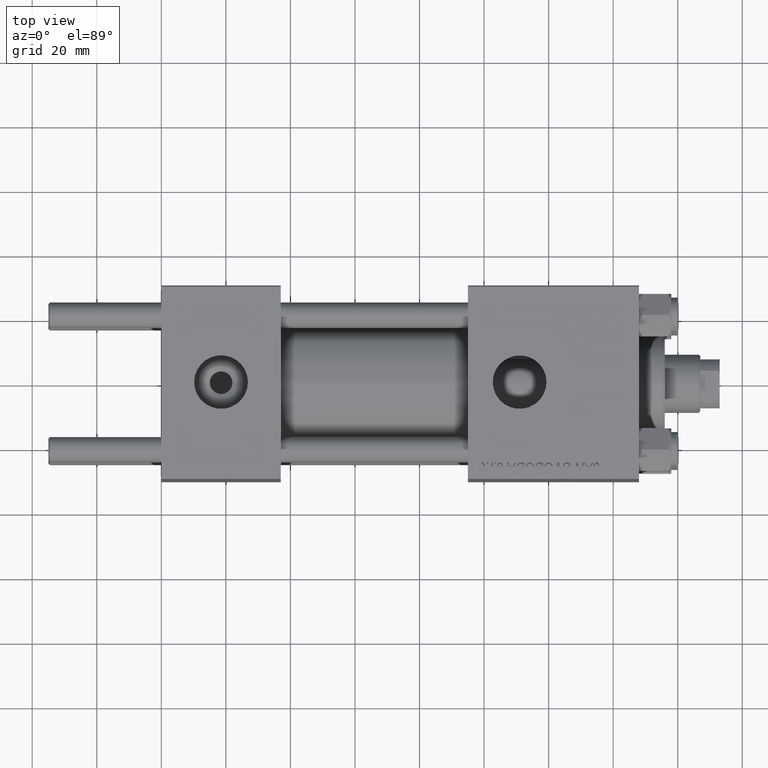
[diagram: clean part render]
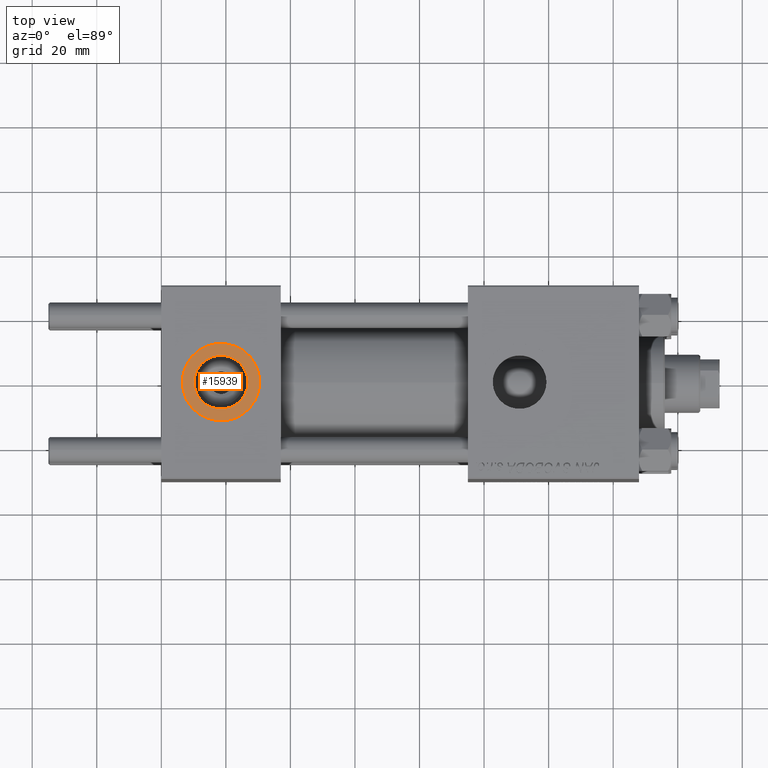
[diagram: same view with one face highlighted and labeled with its STEP entity id]
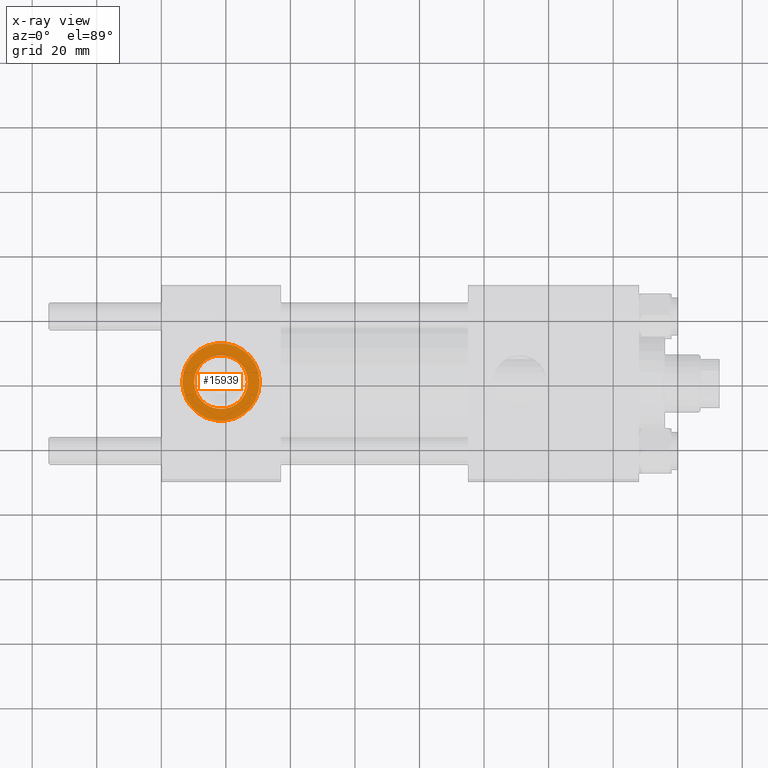
[diagram: x-ray of the same camera — body ghosted, the highlighted face saturated]
A machine part, top view. The second image highlights one B-rep face of the part: STEP entity #15939.
The next image is the same camera in x-ray: the body ghosted, the highlighted face saturated — about 0% of this face is hidden behind the body in this view.
In plain terms, the highlighted planar face has unit normal (0, 0, 1).
Its self-contained STEP definition (entity closure, byte-faithful):
#2458 = FACE_OUTER_BOUND ( 'NONE', #20379, .T. ) ;
#4469 = CARTESIAN_POINT ( 'NONE',  ( 18.50000000000000000, -3.469446951953614978E-15, 29.79999999999999716 ) ) ;
#5456 = EDGE_CURVE ( 'NONE', #23767, #25866, #7823, .T. ) ;
#7823 = CIRCLE ( 'NONE', #24618, 12.00000000000000000 ) ;
#8326 = CARTESIAN_POINT ( 'NONE',  ( 26.82999999999999829, -3.469446951953614978E-15, 29.79999999999999716 ) ) ;
#9488 = ORIENTED_EDGE ( 'NONE', *, *, #21415, .T. ) ;
#11470 = AXIS2_PLACEMENT_3D ( 'NONE', #47481, #18621, #23085 ) ;
#12981 = CARTESIAN_POINT ( 'NONE',  ( 30.50000000000000000, -3.469446951953614978E-15, 29.79999999999999716 ) ) ;
#13714 = DIRECTION ( 'NONE',  ( 0.000000000000000000, 0.000000000000000000, 1.000000000000000000 ) ) ;
#13995 = FACE_BOUND ( 'NONE', #20449, .T. ) ;
#14814 = CIRCLE ( 'NONE', #28211, 12.00000000000000000 ) ;
#15561 = AXIS2_PLACEMENT_3D ( 'NONE', #4469, #20462, #36485 ) ;
#15939 = ADVANCED_FACE ( 'NONE', ( #13995, #2458 ), #37890, .T. ) ;
#16692 = CARTESIAN_POINT ( 'NONE',  ( 10.16999999999999638, -2.449316168263869821E-15, 29.79999999999999716 ) ) ;
#18194 = EDGE_CURVE ( 'NONE', #38229, #48994, #38192, .T. ) ;
#18621 = DIRECTION ( 'NONE',  ( 0.000000000000000000, 0.000000000000000000, 1.000000000000000000 ) ) ;
#20351 = CARTESIAN_POINT ( 'NONE',  ( 18.50000000000000000, -3.469446951953614978E-15, 29.79999999999999716 ) ) ;
#20379 = EDGE_LOOP ( 'NONE', ( #27788, #9488 ) ) ;
#20449 = EDGE_LOOP ( 'NONE', ( #41745, #41969 ) ) ;
#20462 = DIRECTION ( 'NONE',  ( 0.000000000000000000, 0.000000000000000000, 1.000000000000000000 ) ) ;
#21415 = EDGE_CURVE ( 'NONE', #25866, #23767, #14814, .T. ) ;
#23085 = DIRECTION ( 'NONE',  ( 1.000000000000000000, 0.000000000000000000, 0.000000000000000000 ) ) ;
#23542 = DIRECTION ( 'NONE',  ( 0.000000000000000000, 0.000000000000000000, 1.000000000000000000 ) ) ;
#23767 = VERTEX_POINT ( 'NONE', #12981 ) ;
#24056 = DIRECTION ( 'NONE',  ( 1.000000000000000000, 0.000000000000000000, 0.000000000000000000 ) ) ;
#24618 = AXIS2_PLACEMENT_3D ( 'NONE', #49690, #13714, #44438 ) ;
#25645 = EDGE_CURVE ( 'NONE', #48994, #38229, #40835, .T. ) ;
#25866 = VERTEX_POINT ( 'NONE', #26884 ) ;
#26851 = DIRECTION ( 'NONE',  ( 0.000000000000000000, 0.000000000000000000, 1.000000000000000000 ) ) ;
#26884 = CARTESIAN_POINT ( 'NONE',  ( 6.499999999999997335, -1.999870792976790833E-15, 29.79999999999999716 ) ) ;
#27788 = ORIENTED_EDGE ( 'NONE', *, *, #5456, .T. ) ;
#28211 = AXIS2_PLACEMENT_3D ( 'NONE', #20351, #23542, #24056 ) ;
#28256 = AXIS2_PLACEMENT_3D ( 'NONE', #34730, #26851, #42618 ) ;
#34730 = CARTESIAN_POINT ( 'NONE',  ( 18.50000000000000000, -3.469446951953614978E-15, 29.79999999999999716 ) ) ;
#36485 = DIRECTION ( 'NONE',  ( 1.000000000000000000, 0.000000000000000000, 0.000000000000000000 ) ) ;
#37890 = PLANE ( 'NONE',  #28256 ) ;
#38192 = CIRCLE ( 'NONE', #15561, 8.330000000000000071 ) ;
#38229 = VERTEX_POINT ( 'NONE', #8326 ) ;
#40835 = CIRCLE ( 'NONE', #11470, 8.330000000000000071 ) ;
#41745 = ORIENTED_EDGE ( 'NONE', *, *, #18194, .F. ) ;
#41969 = ORIENTED_EDGE ( 'NONE', *, *, #25645, .F. ) ;
#42618 = DIRECTION ( 'NONE',  ( 1.000000000000000000, 0.000000000000000000, -0.000000000000000000 ) ) ;
#44438 = DIRECTION ( 'NONE',  ( 1.000000000000000000, 0.000000000000000000, 0.000000000000000000 ) ) ;
#47481 = CARTESIAN_POINT ( 'NONE',  ( 18.50000000000000000, -3.469446951953614978E-15, 29.79999999999999716 ) ) ;
#48994 = VERTEX_POINT ( 'NONE', #16692 ) ;
#49690 = CARTESIAN_POINT ( 'NONE',  ( 18.50000000000000000, -3.469446951953614978E-15, 29.79999999999999716 ) ) ;